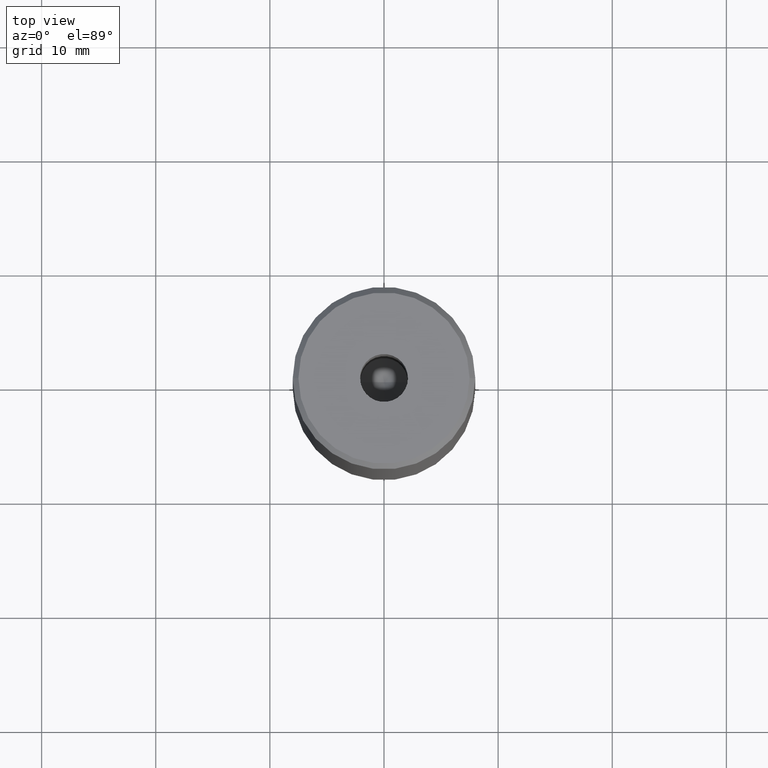
[diagram: clean part render]
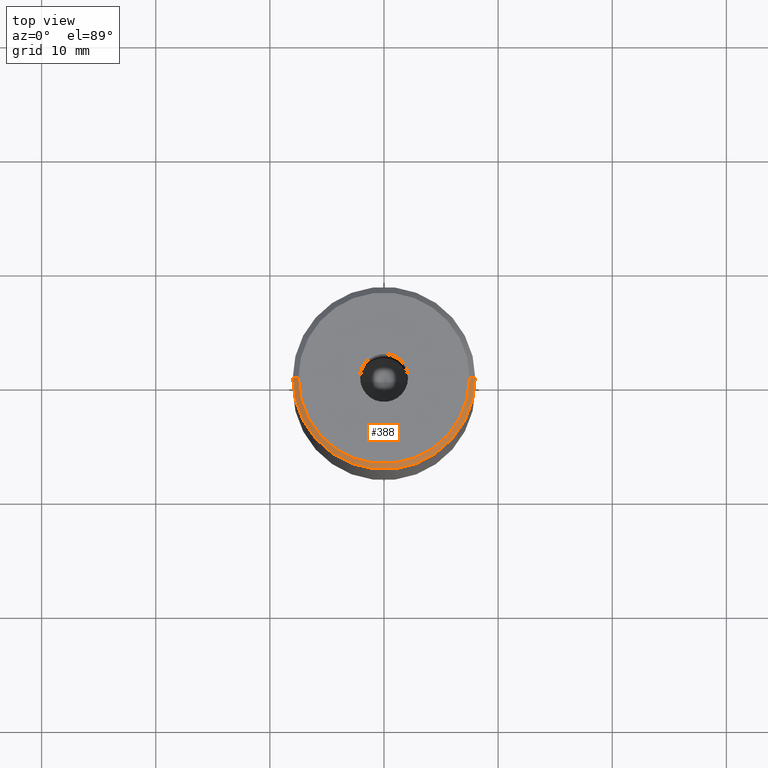
[diagram: same view with one face highlighted and labeled with its STEP entity id]
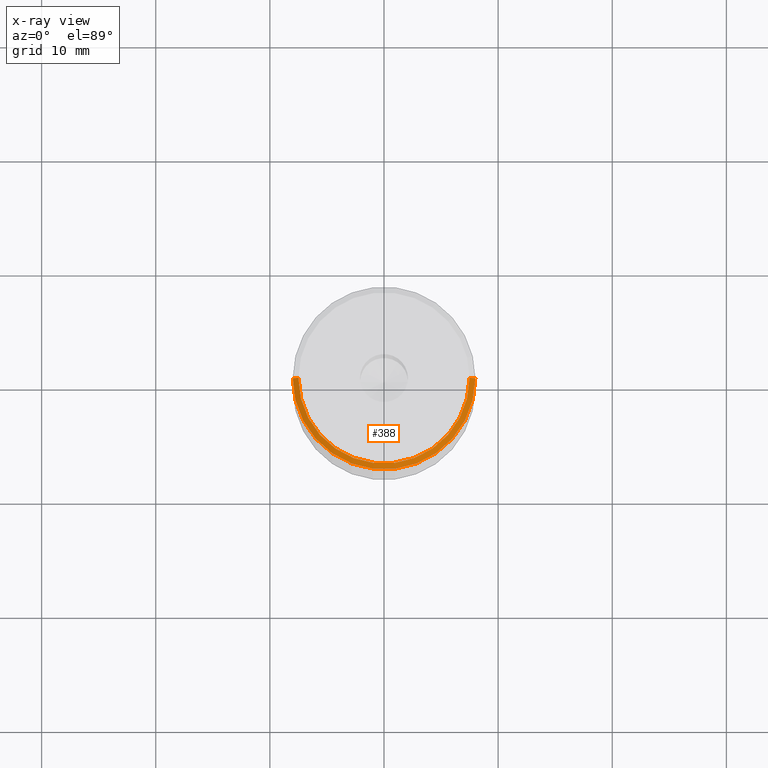
[diagram: x-ray of the same camera — body ghosted, the highlighted face saturated]
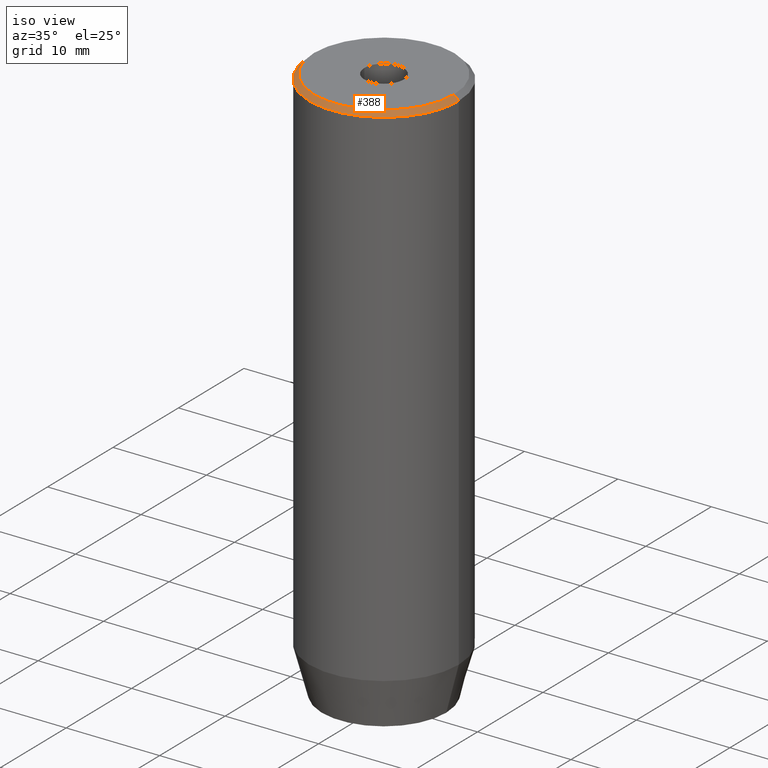
[diagram: same view with one face highlighted and labeled with its STEP entity id]
A machine part, top view. The second image highlights one B-rep face of the part: STEP entity #388.
The next image is the same camera in x-ray: the body ghosted, the highlighted face saturated — about 0% of this face is hidden behind the body in this view.
A second angle (iso view) of the same face is appended — the face is thin or edge-on in the first view.
In plain terms, the highlighted conical surface has half-angle 45 deg.
Its self-contained STEP definition (entity closure, byte-faithful):
#1 = EDGE_LOOP ( 'NONE', ( #491, #107, #47, #19 ) ) ;
#19 = ORIENTED_EDGE ( 'NONE', *, *, #21, .F. ) ;
#21 = EDGE_CURVE ( 'NONE', #264, #63, #364, .T. ) ;
#30 = VERTEX_POINT ( 'NONE', #569 ) ;
#47 = ORIENTED_EDGE ( 'NONE', *, *, #335, .T. ) ;
#50 = VECTOR ( 'NONE', #182, 1000.000000000000000 ) ;
#63 = VERTEX_POINT ( 'NONE', #337 ) ;
#69 = DIRECTION ( 'NONE',  ( 0.7071067811865524577, 8.659560562354993255E-17, -0.7071067811865426878 ) ) ;
#98 = CARTESIAN_POINT ( 'NONE',  ( -7.500000000000007105, 0.000000000000000000, 0.000000000000000000 ) ) ;
#107 = ORIENTED_EDGE ( 'NONE', *, *, #522, .F. ) ;
#148 = CARTESIAN_POINT ( 'NONE',  ( 0.000000000000000000, 0.000000000000000000, 0.000000000000000000 ) ) ;
#174 = AXIS2_PLACEMENT_3D ( 'NONE', #148, #330, #376 ) ;
#182 = DIRECTION ( 'NONE',  ( -0.7071067811865524577, 0.000000000000000000, -0.7071067811865426878 ) ) ;
#209 = DIRECTION ( 'NONE',  ( 1.000000000000000000, 0.000000000000000000, 0.000000000000000000 ) ) ;
#221 = AXIS2_PLACEMENT_3D ( 'NONE', #436, #385, #209 ) ;
#244 = CIRCLE ( 'NONE', #572, 7.500000000000007105 ) ;
#248 = FACE_OUTER_BOUND ( 'NONE', #1, .T. ) ;
#254 = LINE ( 'NONE', #516, #445 ) ;
#264 = VERTEX_POINT ( 'NONE', #438 ) ;
#330 = DIRECTION ( 'NONE',  ( 0.000000000000000000, 0.000000000000000000, -1.000000000000000000 ) ) ;
#335 = EDGE_CURVE ( 'NONE', #580, #63, #490, .T. ) ;
#337 = CARTESIAN_POINT ( 'NONE',  ( -8.000000000000000000, 9.797174393178825657E-16, -0.4999999999999866773 ) ) ;
#351 = CONICAL_SURFACE ( 'NONE', #174, 7.500000000000007105, 0.7853981633974552734 ) ;
#364 = CIRCLE ( 'NONE', #221, 8.000000000000000000 ) ;
#376 = DIRECTION ( 'NONE',  ( -1.000000000000000000, 0.000000000000000000, 0.000000000000000000 ) ) ;
#385 = DIRECTION ( 'NONE',  ( 0.000000000000000000, 0.000000000000000000, -1.000000000000000000 ) ) ;
#388 = ADVANCED_FACE ( 'NONE', ( #248 ), #351, .T. ) ;
#407 = EDGE_CURVE ( 'NONE', #30, #264, #254, .T. ) ;
#410 = CARTESIAN_POINT ( 'NONE',  ( -7.500000000000007105, 0.000000000000000000, 0.000000000000000000 ) ) ;
#436 = CARTESIAN_POINT ( 'NONE',  ( 0.000000000000000000, 0.000000000000000000, -0.4999999999999866773 ) ) ;
#438 = CARTESIAN_POINT ( 'NONE',  ( 8.000000000000000000, 0.000000000000000000, -0.4999999999999866773 ) ) ;
#442 = DIRECTION ( 'NONE',  ( -0.000000000000000000, -0.000000000000000000, 1.000000000000000000 ) ) ;
#445 = VECTOR ( 'NONE', #69, 1000.000000000000000 ) ;
#490 = LINE ( 'NONE', #410, #50 ) ;
#491 = ORIENTED_EDGE ( 'NONE', *, *, #407, .F. ) ;
#492 = DIRECTION ( 'NONE',  ( 1.000000000000000000, 0.000000000000000000, 0.000000000000000000 ) ) ;
#516 = CARTESIAN_POINT ( 'NONE',  ( 7.500000000000007105, 9.184850993605157805E-16, 0.000000000000000000 ) ) ;
#522 = EDGE_CURVE ( 'NONE', #580, #30, #244, .T. ) ;
#569 = CARTESIAN_POINT ( 'NONE',  ( 7.500000000000007105, 9.491012693391991731E-16, 0.000000000000000000 ) ) ;
#572 = AXIS2_PLACEMENT_3D ( 'NONE', #585, #442, #492 ) ;
#580 = VERTEX_POINT ( 'NONE', #98 ) ;
#585 = CARTESIAN_POINT ( 'NONE',  ( 0.000000000000000000, 0.000000000000000000, 0.000000000000000000 ) ) ;